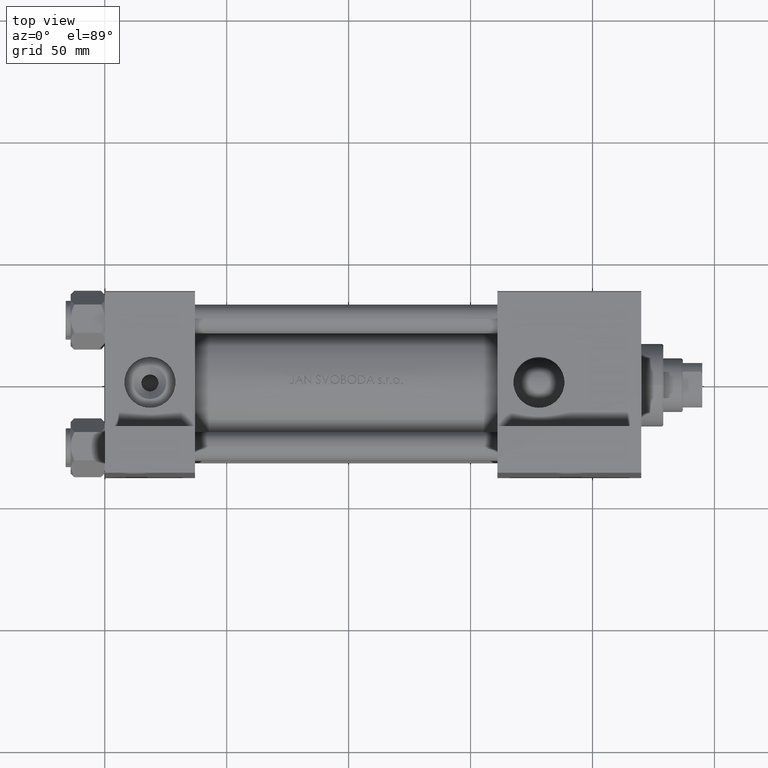
[diagram: clean part render]
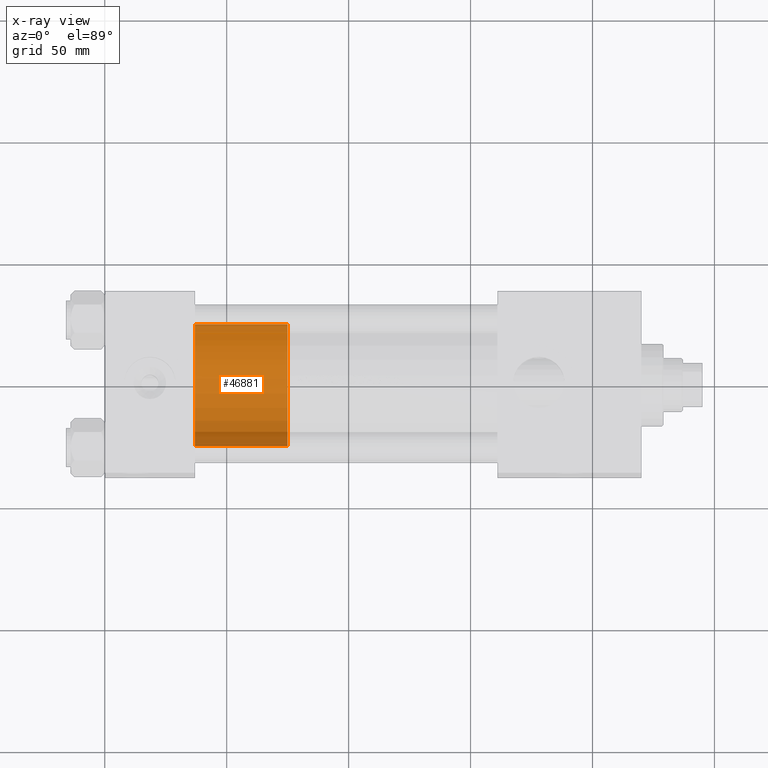
[diagram: x-ray — body ghosted, one internal face saturated and labeled with its STEP entity id]
A machine part, top view, then the same camera in x-ray: the body is ghosted and one INTERNAL B-rep face — a face not visible from any outside direction — is saturated and labeled: STEP entity #46881.
In plain terms, the highlighted cylindrical surface (partial cylindrical patch) has radius 25 mm, axis along (-1, 0, 0).
Its self-contained STEP definition (entity closure, byte-faithful):
#231 = LINE ( 'NONE', #26647, #45723 ) ;
#3167 = CARTESIAN_POINT ( 'NONE',  ( 0.000000000000000000, 0.000000000000000000, 0.000000000000000000 ) ) ;
#3415 = DIRECTION ( 'NONE',  ( 1.000000000000000000, 0.000000000000000000, 0.000000000000000000 ) ) ;
#4511 = EDGE_CURVE ( 'NONE', #17561, #19175, #35067, .T. ) ;
#4908 = CARTESIAN_POINT ( 'NONE',  ( -25.00000000000000000, 0.000000000000000000, 0.000000000000000000 ) ) ;
#6131 = LINE ( 'NONE', #13591, #44121 ) ;
#9193 = VERTEX_POINT ( 'NONE', #18841 ) ;
#10022 = ORIENTED_EDGE ( 'NONE', *, *, #21894, .T. ) ;
#12074 = DIRECTION ( 'NONE',  ( 0.000000000000000000, 0.000000000000000000, 1.000000000000000000 ) ) ;
#13591 = CARTESIAN_POINT ( 'NONE',  ( -25.00000000000000000, 0.000000000000000000, 38.00000000000000000 ) ) ;
#14103 = CARTESIAN_POINT ( 'NONE',  ( -25.00000000000000000, 0.000000000000000000, 38.00000000000000000 ) ) ;
#14582 = AXIS2_PLACEMENT_3D ( 'NONE', #3167, #22853, #3415 ) ;
#15430 = ORIENTED_EDGE ( 'NONE', *, *, #49104, .F. ) ;
#17023 = AXIS2_PLACEMENT_3D ( 'NONE', #39214, #38724, #26780 ) ;
#17561 = VERTEX_POINT ( 'NONE', #43385 ) ;
#18841 = CARTESIAN_POINT ( 'NONE',  ( 25.00000000000000000, 3.061616997868383043E-15, 0.000000000000000000 ) ) ;
#19175 = VERTEX_POINT ( 'NONE', #14103 ) ;
#19938 = AXIS2_PLACEMENT_3D ( 'NONE', #46202, #12074, #42468 ) ;
#20030 = CYLINDRICAL_SURFACE ( 'NONE', #17023, 25.00000000000000000 ) ;
#21894 = EDGE_CURVE ( 'NONE', #17561, #9193, #231, .T. ) ;
#22569 = CIRCLE ( 'NONE', #14582, 25.00000000000000000 ) ;
#22853 = DIRECTION ( 'NONE',  ( 0.000000000000000000, 0.000000000000000000, 1.000000000000000000 ) ) ;
#26647 = CARTESIAN_POINT ( 'NONE',  ( 25.00000000000000000, 3.061616997868383043E-15, 38.00000000000000000 ) ) ;
#26780 = DIRECTION ( 'NONE',  ( -1.000000000000000000, 0.000000000000000000, 0.000000000000000000 ) ) ;
#29900 = DIRECTION ( 'NONE',  ( -0.000000000000000000, -0.000000000000000000, -1.000000000000000000 ) ) ;
#35067 = CIRCLE ( 'NONE', #19938, 25.00000000000000000 ) ;
#35312 = ORIENTED_EDGE ( 'NONE', *, *, #46628, .T. ) ;
#38724 = DIRECTION ( 'NONE',  ( -0.000000000000000000, -0.000000000000000000, -1.000000000000000000 ) ) ;
#38830 = EDGE_LOOP ( 'NONE', ( #45245, #10022, #35312, #15430 ) ) ;
#39214 = CARTESIAN_POINT ( 'NONE',  ( 0.000000000000000000, 0.000000000000000000, 38.00000000000000000 ) ) ;
#41955 = FACE_OUTER_BOUND ( 'NONE', #38830, .T. ) ;
#42468 = DIRECTION ( 'NONE',  ( 1.000000000000000000, 0.000000000000000000, 0.000000000000000000 ) ) ;
#43385 = CARTESIAN_POINT ( 'NONE',  ( 25.00000000000000000, 3.061616997868383043E-15, 38.00000000000000000 ) ) ;
#44121 = VECTOR ( 'NONE', #47969, 1000.000000000000000 ) ;
#45245 = ORIENTED_EDGE ( 'NONE', *, *, #4511, .F. ) ;
#45723 = VECTOR ( 'NONE', #29900, 1000.000000000000000 ) ;
#46202 = CARTESIAN_POINT ( 'NONE',  ( 0.000000000000000000, 0.000000000000000000, 38.00000000000000000 ) ) ;
#46628 = EDGE_CURVE ( 'NONE', #9193, #49052, #22569, .T. ) ;
#46881 = ADVANCED_FACE ( 'NONE', ( #41955 ), #20030, .T. ) ;
#47969 = DIRECTION ( 'NONE',  ( -0.000000000000000000, -0.000000000000000000, -1.000000000000000000 ) ) ;
#49052 = VERTEX_POINT ( 'NONE', #4908 ) ;
#49104 = EDGE_CURVE ( 'NONE', #19175, #49052, #6131, .T. ) ;